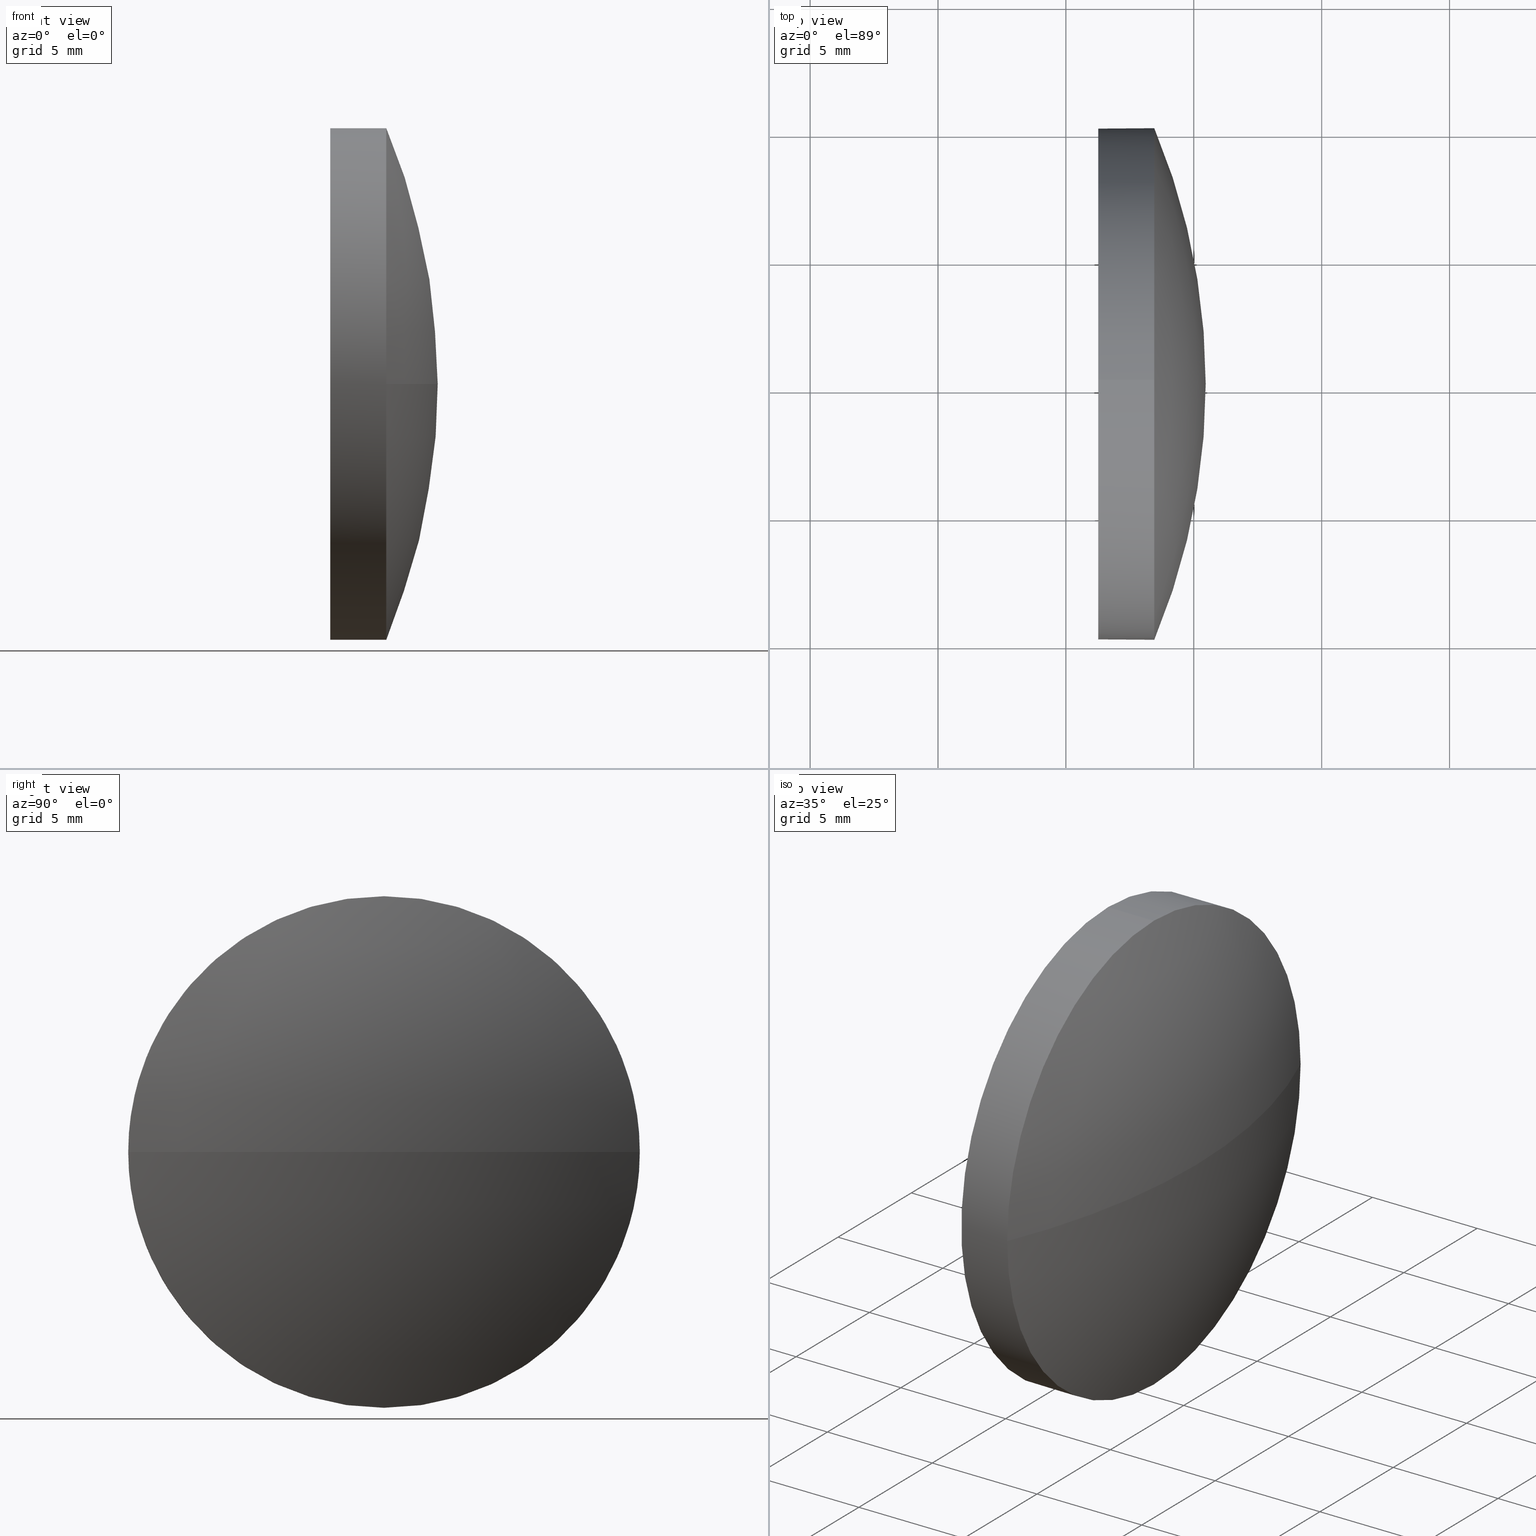
[diagram: canonical four-view strip — front | top / right | iso, engineering-drawing reading convention]
A machine part, canonical four-view strip (front | top / right | iso — engineering-drawing reading convention). The complete STEP part file that produces these views, byte-faithful:
ISO-10303-21;
HEADER;
FILE_DESCRIPTION (( 'STEP AP214' ),
    '1' );
FILE_NAME ('100121.STEP',
    '2019-05-14T05:45:19',
    ( '' ),
    ( '' ),
    'SwSTEP 2.0',
    'SolidWorks 2016',
    '' );
FILE_SCHEMA (( 'AUTOMOTIVE_DESIGN' ));
ENDSEC;

DATA;
#1 = ORIENTED_EDGE ( 'NONE', *, *, #74, .T. ) ;
#2 = ADVANCED_FACE ( 'NONE', ( #48 ), #145, .F. ) ;
#3 = VERTEX_POINT ( 'NONE', #35 ) ;
#4 = AXIS2_PLACEMENT_3D ( 'NONE', #132, #127, #62 ) ;
#5 = EDGE_CURVE ( 'NONE', #3, #170, #156, .T. ) ;
#6 = CIRCLE ( 'NONE', #86, 9.999999999999980500 ) ;
#7 = DIRECTION ( 'NONE',  ( 0.0000000000000000000, 1.000000000000000000, 0.0000000000000000000 ) ) ;
#8 = DIRECTION ( 'NONE',  ( -0.0000000000000000000, 0.0000000000000000000, -1.000000000000000000 ) ) ;
#9 = ORIENTED_EDGE ( 'NONE', *, *, #59, .T. ) ;
#10 = FILL_AREA_STYLE ('',( #133 ) ) ;
#11 = ORIENTED_EDGE ( 'NONE', *, *, #72, .F. ) ;
#12 =( NAMED_UNIT ( * ) SI_UNIT ( $, .STERADIAN. ) SOLID_ANGLE_UNIT ( ) );
#13 = CIRCLE ( 'NONE', #4, 9.999999999999980500 ) ;
#14 = AXIS2_PLACEMENT_3D ( 'NONE', #33, #163, #90 ) ;
#15 = UNCERTAINTY_MEASURE_WITH_UNIT (LENGTH_MEASURE( 1.000000000000000100E-005 ), #43, 'distance_accuracy_value', 'NONE');
#16 = CYLINDRICAL_SURFACE ( 'NONE', #23, 9.999999999999980500 ) ;
#17 = CARTESIAN_POINT ( 'NONE',  ( 551.2665742364943100, 125.1720671761335200, 0.0000000000000000000 ) ) ;
#18 = VERTEX_POINT ( 'NONE', #162 ) ;
#19 =( LENGTH_UNIT ( ) NAMED_UNIT ( * ) SI_UNIT ( .MILLI., .METRE. ) );
#20 = DIRECTION ( 'NONE',  ( -1.000000000000000000, -0.0000000000000000000, -0.0000000000000000000 ) ) ;
#21 = SURFACE_STYLE_FILL_AREA ( #10 ) ;
#22 = CARTESIAN_POINT ( 'NONE',  ( 548.8630533554371600, 125.1720671761335200, -9.999999999999980500 ) ) ;
#23 = AXIS2_PLACEMENT_3D ( 'NONE', #67, #68, #36 ) ;
#24 = DIRECTION ( 'NONE',  ( 0.0000000000000000000, 0.0000000000000000000, 1.000000000000000000 ) ) ;
#25 = DIRECTION ( 'NONE',  ( 0.0000000000000000000, 1.000000000000000000, 1.224646799147353200E-016 ) ) ;
#26 = EDGE_LOOP ( 'NONE', ( #47, #37, #174, #164 ) ) ;
#27 = ADVANCED_FACE ( 'NONE', ( #97 ), #143, .T. ) ;
#28 = ADVANCED_BREP_SHAPE_REPRESENTATION ( '100121', ( #150, #84 ), #45 ) ;
#29 = ADVANCED_FACE ( 'NONE', ( #177 ), #114, .T. ) ;
#30 = PRESENTATION_STYLE_ASSIGNMENT (( #79 ) ) ;
#31 = AXIS2_PLACEMENT_3D ( 'NONE', #93, #149, #54 ) ;
#32 = CARTESIAN_POINT ( 'NONE',  ( 548.8630533554371600, 125.1720671761335200, 9.999999999999980500 ) ) ;
#33 = CARTESIAN_POINT ( 'NONE',  ( 553.4565742364943600, 125.1720671761335200, 0.0000000000000000000 ) ) ;
#34 = COLOUR_RGB ( '',1.000000000000000000, 1.000000000000000000, 1.000000000000000000 ) ;
#35 = CARTESIAN_POINT ( 'NONE',  ( 553.4565742364943600, 125.1720671761335200, -9.999999999999980500 ) ) ;
#36 = DIRECTION ( 'NONE',  ( 0.0000000000000000000, 0.0000000000000000000, 1.000000000000000000 ) ) ;
#37 = ORIENTED_EDGE ( 'NONE', *, *, #158, .T. ) ;
#38 = CARTESIAN_POINT ( 'NONE',  ( 553.4565742364943600, 135.1720671761334500, 0.0000000000000000000 ) ) ;
#39 = PRODUCT_DEFINITION_SHAPE ( 'NONE', 'NONE',  #49 ) ;
#40 = MECHANICAL_DESIGN_GEOMETRIC_PRESENTATION_REPRESENTATION (  '', ( #77 ), #123 ) ;
#41 = CARTESIAN_POINT ( 'NONE',  ( 529.5859523459470200, 125.1720671761334400, 0.0000000000000000000 ) ) ;
#42 = FACE_OUTER_BOUND ( 'NONE', #75, .T. ) ;
#43 =( LENGTH_UNIT ( ) NAMED_UNIT ( * ) SI_UNIT ( .MILLI., .METRE. ) );
#44 = PRODUCT ( '100121', '100121', '', ( #83 ) ) ;
#45 =( GEOMETRIC_REPRESENTATION_CONTEXT ( 3 ) GLOBAL_UNCERTAINTY_ASSIGNED_CONTEXT ( ( #144 ) ) GLOBAL_UNIT_ASSIGNED_CONTEXT ( ( #19, #152, #179 ) ) REPRESENTATION_CONTEXT ( 'NONE', 'WORKASPACE' ) );
#46 = EDGE_LOOP ( 'NONE', ( #82, #182, #120, #153, #99 ) ) ;
#47 = ORIENTED_EDGE ( 'NONE', *, *, #89, .F. ) ;
#48 = FACE_OUTER_BOUND ( 'NONE', #129, .T. ) ;
#49 = PRODUCT_DEFINITION ( 'δ֪', '', #173, #171 ) ;
#50 = DIRECTION ( 'NONE',  ( -1.000000000000000000, -0.0000000000000000000, -0.0000000000000000000 ) ) ;
#51 = DIRECTION ( 'NONE',  ( 1.000000000000000000, 0.0000000000000000000, 0.0000000000000000000 ) ) ;
#52 = DIRECTION ( 'NONE',  ( 0.0000000000000000000, 1.000000000000000000, 0.0000000000000000000 ) ) ;
#53 = SURFACE_SIDE_STYLE ('',( #21 ) ) ;
#54 = DIRECTION ( 'NONE',  ( 1.000000000000000000, 0.0000000000000000000, 0.0000000000000000000 ) ) ;
#55 = APPLICATION_PROTOCOL_DEFINITION ( 'draft international standard', 'automotive_design', 1998, #106 ) ;
#56 = ORIENTED_EDGE ( 'NONE', *, *, #72, .T. ) ;
#57 = FILL_AREA_STYLE_COLOUR ( '', #34 ) ;
#58 = SHAPE_DEFINITION_REPRESENTATION ( #39, #28 ) ;
#59 = EDGE_CURVE ( 'NONE', #105, #18, #94, .T. ) ;
#60 = CIRCLE ( 'NONE', #31, 25.88062189054729600 ) ;
#61 = FACE_OUTER_BOUND ( 'NONE', #46, .T. ) ;
#62 = DIRECTION ( 'NONE',  ( 0.0000000000000000000, 0.0000000000000000000, 1.000000000000000000 ) ) ;
#63 = CIRCLE ( 'NONE', #118, 9.999999999999980500 ) ;
#64 = DIRECTION ( 'NONE',  ( -1.000000000000000000, -0.0000000000000000000, -0.0000000000000000000 ) ) ;
#65 = DIRECTION ( 'NONE',  ( -1.000000000000000000, -0.0000000000000000000, -0.0000000000000000000 ) ) ;
#66 = EDGE_CURVE ( 'NONE', #183, #3, #13, .T. ) ;
#67 = CARTESIAN_POINT ( 'NONE',  ( 548.8630533554371600, 125.1720671761335200, 0.0000000000000000000 ) ) ;
#68 = DIRECTION ( 'NONE',  ( -1.000000000000000000, -0.0000000000000000000, -0.0000000000000000000 ) ) ;
#69 = CARTESIAN_POINT ( 'NONE',  ( 551.2665742364943100, 125.1720671761335200, -9.999999999999980500 ) ) ;
#70 = ORIENTED_EDGE ( 'NONE', *, *, #115, .F. ) ;
#71 = CIRCLE ( 'NONE', #140, 25.88062189054732400 ) ;
#72 = EDGE_CURVE ( 'NONE', #138, #18, #63, .T. ) ;
#73 = COLOUR_RGB ( '',1.000000000000000000, 1.000000000000000000, 1.000000000000000000 ) ;
#74 = EDGE_CURVE ( 'NONE', #170, #105, #80, .T. ) ;
#75 = EDGE_LOOP ( 'NONE', ( #70, #111, #1, #9, #11 ) ) ;
#76 = CARTESIAN_POINT ( 'NONE',  ( 551.2665742364943100, 125.1720671761335200, 0.0000000000000000000 ) ) ;
#77 = STYLED_ITEM ( 'NONE', ( #30 ), #28 ) ;
#78 = CARTESIAN_POINT ( 'NONE',  ( 555.4665742364943500, 125.1720671761334400, 0.0000000000000000000 ) ) ;
#79 = SURFACE_STYLE_USAGE ( .BOTH. , #165 ) ;
#80 = CIRCLE ( 'NONE', #14, 9.999999999999980500 ) ;
#81 = AXIS2_PLACEMENT_3D ( 'NONE', #102, #176, #7 ) ;
#82 = ORIENTED_EDGE ( 'NONE', *, *, #66, .T. ) ;
#83 = PRODUCT_CONTEXT ( 'NONE', #106, 'mechanical' ) ;
#84 = AXIS2_PLACEMENT_3D ( 'NONE', #91, #24, #121 ) ;
#85 = EDGE_CURVE ( 'NONE', #18, #138, #6, .T. ) ;
#86 = AXIS2_PLACEMENT_3D ( 'NONE', #136, #65, #122 ) ;
#87 = ORIENTED_EDGE ( 'NONE', *, *, #85, .T. ) ;
#88 = AXIS2_PLACEMENT_3D ( 'NONE', #108, #104, #116 ) ;
#89 = EDGE_CURVE ( 'NONE', #130, #170, #71, .T. ) ;
#90 = DIRECTION ( 'NONE',  ( 0.0000000000000000000, 0.0000000000000000000, 1.000000000000000000 ) ) ;
#91 = CARTESIAN_POINT ( 'NONE',  ( 0.0000000000000000000, 0.0000000000000000000, 0.0000000000000000000 ) ) ;
#92 =( NAMED_UNIT ( * ) PLANE_ANGLE_UNIT ( ) SI_UNIT ( $, .RADIAN. ) );
#93 = CARTESIAN_POINT ( 'NONE',  ( 529.5859523459470200, 125.1720671761334400, 0.0000000000000000000 ) ) ;
#94 = LINE ( 'NONE', #32, #134 ) ;
#95 = AXIS2_PLACEMENT_3D ( 'NONE', #181, #107, #184 ) ;
#96 = PRESENTATION_LAYER_ASSIGNMENT (  '', '', ( #101 ) ) ;
#97 = FACE_OUTER_BOUND ( 'NONE', #139, .T. ) ;
#98 = CLOSED_SHELL ( 'NONE', ( #169, #27, #29, #159, #2 ) ) ;
#99 = ORIENTED_EDGE ( 'NONE', *, *, #103, .T. ) ;
#100 = AXIS2_PLACEMENT_3D ( 'NONE', #131, #8, #52 ) ;
#101 = STYLED_ITEM ( 'NONE', ( #178 ), #150 ) ;
#102 = CARTESIAN_POINT ( 'NONE',  ( 529.5859523459470200, 125.1720671761334400, 0.0000000000000000000 ) ) ;
#103 = EDGE_CURVE ( 'NONE', #105, #183, #168, .T. ) ;
#104 = DIRECTION ( 'NONE',  ( -1.000000000000000000, -0.0000000000000000000, -0.0000000000000000000 ) ) ;
#105 = VERTEX_POINT ( 'NONE', #167 ) ;
#106 = APPLICATION_CONTEXT ( 'automotive_design' ) ;
#107 = DIRECTION ( 'NONE',  ( -1.000000000000000000, -0.0000000000000000000, -0.0000000000000000000 ) ) ;
#108 = CARTESIAN_POINT ( 'NONE',  ( 548.8630533554371600, 125.1720671761335200, 0.0000000000000000000 ) ) ;
#109 = APPLICATION_CONTEXT ( 'automotive_design' ) ;
#110 = VECTOR ( 'NONE', #20, 1000.000000000000000 ) ;
#111 = ORIENTED_EDGE ( 'NONE', *, *, #5, .T. ) ;
#112 =( GEOMETRIC_REPRESENTATION_CONTEXT ( 3 ) GLOBAL_UNCERTAINTY_ASSIGNED_CONTEXT ( ( #15 ) ) GLOBAL_UNIT_ASSIGNED_CONTEXT ( ( #43, #148, #154 ) ) REPRESENTATION_CONTEXT ( 'NONE', 'WORKASPACE' ) );
#113 = DIRECTION ( 'NONE',  ( 0.0000000000000000000, 0.0000000000000000000, -1.000000000000000000 ) ) ;
#114 = SPHERICAL_SURFACE ( 'NONE', #81, 25.88062189054732800 ) ;
#115 = EDGE_CURVE ( 'NONE', #3, #138, #147, .T. ) ;
#116 = DIRECTION ( 'NONE',  ( 0.0000000000000000000, 0.0000000000000000000, 1.000000000000000000 ) ) ;
#117 = SURFACE_STYLE_USAGE ( .BOTH. , #53 ) ;
#118 = AXIS2_PLACEMENT_3D ( 'NONE', #17, #160, #175 ) ;
#119 = CARTESIAN_POINT ( 'NONE',  ( 553.4565742364943600, 115.1720671761335000, -1.224646799147346600E-015 ) ) ;
#120 = ORIENTED_EDGE ( 'NONE', *, *, #85, .F. ) ;
#121 = DIRECTION ( 'NONE',  ( 1.000000000000000000, 0.0000000000000000000, 0.0000000000000000000 ) ) ;
#122 = DIRECTION ( 'NONE',  ( 0.0000000000000000000, 0.0000000000000000000, 1.000000000000000000 ) ) ;
#123 =( GEOMETRIC_REPRESENTATION_CONTEXT ( 3 ) GLOBAL_UNCERTAINTY_ASSIGNED_CONTEXT ( ( #125 ) ) GLOBAL_UNIT_ASSIGNED_CONTEXT ( ( #166, #92, #12 ) ) REPRESENTATION_CONTEXT ( 'NONE', 'WORKASPACE' ) );
#124 = CYLINDRICAL_SURFACE ( 'NONE', #88, 9.999999999999980500 ) ;
#125 = UNCERTAINTY_MEASURE_WITH_UNIT (LENGTH_MEASURE( 1.000000000000000100E-005 ), #166, 'distance_accuracy_value', 'NONE');
#126 = AXIS2_PLACEMENT_3D ( 'NONE', #76, #51, #113 ) ;
#127 = DIRECTION ( 'NONE',  ( -1.000000000000000000, -0.0000000000000000000, -0.0000000000000000000 ) ) ;
#128 = PRESENTATION_LAYER_ASSIGNMENT (  '', '', ( #77 ) ) ;
#129 = EDGE_LOOP ( 'NONE', ( #87, #56 ) ) ;
#130 = VERTEX_POINT ( 'NONE', #78 ) ;
#131 = CARTESIAN_POINT ( 'NONE',  ( 529.5859523459470200, 125.1720671761334400, 0.0000000000000000000 ) ) ;
#132 = CARTESIAN_POINT ( 'NONE',  ( 553.4565742364943600, 125.1720671761335200, 0.0000000000000000000 ) ) ;
#133 = FILL_AREA_STYLE_COLOUR ( '', #73 ) ;
#134 = VECTOR ( 'NONE', #64, 1000.000000000000000 ) ;
#135 = FILL_AREA_STYLE ('',( #57 ) ) ;
#136 = CARTESIAN_POINT ( 'NONE',  ( 551.2665742364943100, 125.1720671761335200, 0.0000000000000000000 ) ) ;
#137 = DIRECTION ( 'NONE',  ( 0.0000000000000000000, 1.224646799147353200E-016, -1.000000000000000000 ) ) ;
#138 = VERTEX_POINT ( 'NONE', #69 ) ;
#139 = EDGE_LOOP ( 'NONE', ( #172, #141, #142, #157 ) ) ;
#140 = AXIS2_PLACEMENT_3D ( 'NONE', #41, #137, #25 ) ;
#141 = ORIENTED_EDGE ( 'NONE', *, *, #89, .T. ) ;
#142 = ORIENTED_EDGE ( 'NONE', *, *, #5, .F. ) ;
#143 = SPHERICAL_SURFACE ( 'NONE', #100, 25.88062189054732800 ) ;
#144 = UNCERTAINTY_MEASURE_WITH_UNIT (LENGTH_MEASURE( 1.000000000000000100E-005 ), #19, 'distance_accuracy_value', 'NONE');
#145 = PLANE ( 'NONE',  #126 ) ;
#146 = CARTESIAN_POINT ( 'NONE',  ( 553.4565742364943600, 125.1720671761335200, 0.0000000000000000000 ) ) ;
#147 = LINE ( 'NONE', #22, #110 ) ;
#148 =( NAMED_UNIT ( * ) PLANE_ANGLE_UNIT ( ) SI_UNIT ( $, .RADIAN. ) );
#149 = DIRECTION ( 'NONE',  ( -0.0000000000000000000, 0.0000000000000000000, 1.000000000000000000 ) ) ;
#150 = MANIFOLD_SOLID_BREP ( '��ת2', #98 ) ;
#151 = MECHANICAL_DESIGN_GEOMETRIC_PRESENTATION_REPRESENTATION (  '', ( #101 ), #112 ) ;
#152 =( NAMED_UNIT ( * ) PLANE_ANGLE_UNIT ( ) SI_UNIT ( $, .RADIAN. ) );
#153 = ORIENTED_EDGE ( 'NONE', *, *, #59, .F. ) ;
#154 =( NAMED_UNIT ( * ) SI_UNIT ( $, .STERADIAN. ) SOLID_ANGLE_UNIT ( ) );
#155 = APPLICATION_PROTOCOL_DEFINITION ( 'draft international standard', 'automotive_design', 1998, #109 ) ;
#156 = CIRCLE ( 'NONE', #180, 9.999999999999980500 ) ;
#157 = ORIENTED_EDGE ( 'NONE', *, *, #66, .F. ) ;
#158 = EDGE_CURVE ( 'NONE', #130, #183, #60, .T. ) ;
#159 = ADVANCED_FACE ( 'NONE', ( #42 ), #124, .T. ) ;
#160 = DIRECTION ( 'NONE',  ( -1.000000000000000000, -0.0000000000000000000, -0.0000000000000000000 ) ) ;
#161 = DIRECTION ( 'NONE',  ( 0.0000000000000000000, 0.0000000000000000000, 1.000000000000000000 ) ) ;
#162 = CARTESIAN_POINT ( 'NONE',  ( 551.2665742364943100, 125.1720671761335200, 9.999999999999980500 ) ) ;
#163 = DIRECTION ( 'NONE',  ( -1.000000000000000000, -0.0000000000000000000, -0.0000000000000000000 ) ) ;
#164 = ORIENTED_EDGE ( 'NONE', *, *, #74, .F. ) ;
#165 = SURFACE_SIDE_STYLE ('',( #185 ) ) ;
#166 =( LENGTH_UNIT ( ) NAMED_UNIT ( * ) SI_UNIT ( .MILLI., .METRE. ) );
#167 = CARTESIAN_POINT ( 'NONE',  ( 553.4565742364943600, 125.1720671761335200, 9.999999999999980500 ) ) ;
#168 = CIRCLE ( 'NONE', #95, 9.999999999999980500 ) ;
#169 = ADVANCED_FACE ( 'NONE', ( #61 ), #16, .T. ) ;
#170 = VERTEX_POINT ( 'NONE', #119 ) ;
#171 = PRODUCT_DEFINITION_CONTEXT ( 'detailed design', #109, 'design' ) ;
#172 = ORIENTED_EDGE ( 'NONE', *, *, #158, .F. ) ;
#173 = PRODUCT_DEFINITION_FORMATION_WITH_SPECIFIED_SOURCE ( '�κ�', '', #44, .NOT_KNOWN. ) ;
#174 = ORIENTED_EDGE ( 'NONE', *, *, #103, .F. ) ;
#175 = DIRECTION ( 'NONE',  ( 0.0000000000000000000, 0.0000000000000000000, 1.000000000000000000 ) ) ;
#176 = DIRECTION ( 'NONE',  ( -0.0000000000000000000, 0.0000000000000000000, -1.000000000000000000 ) ) ;
#177 = FACE_OUTER_BOUND ( 'NONE', #26, .T. ) ;
#178 = PRESENTATION_STYLE_ASSIGNMENT (( #117 ) ) ;
#179 =( NAMED_UNIT ( * ) SI_UNIT ( $, .STERADIAN. ) SOLID_ANGLE_UNIT ( ) );
#180 = AXIS2_PLACEMENT_3D ( 'NONE', #146, #50, #161 ) ;
#181 = CARTESIAN_POINT ( 'NONE',  ( 553.4565742364943600, 125.1720671761335200, 0.0000000000000000000 ) ) ;
#182 = ORIENTED_EDGE ( 'NONE', *, *, #115, .T. ) ;
#183 = VERTEX_POINT ( 'NONE', #38 ) ;
#184 = DIRECTION ( 'NONE',  ( 0.0000000000000000000, 0.0000000000000000000, 1.000000000000000000 ) ) ;
#185 = SURFACE_STYLE_FILL_AREA ( #135 ) ;
#186 = PRODUCT_RELATED_PRODUCT_CATEGORY ( 'part', '', ( #44 ) ) ;
ENDSEC;
END-ISO-10303-21;
